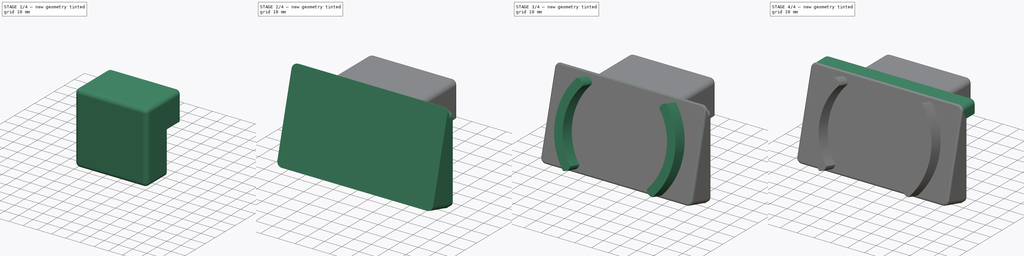
[diagram: build sequence overview — one tinted view per stage of 4, left to right]
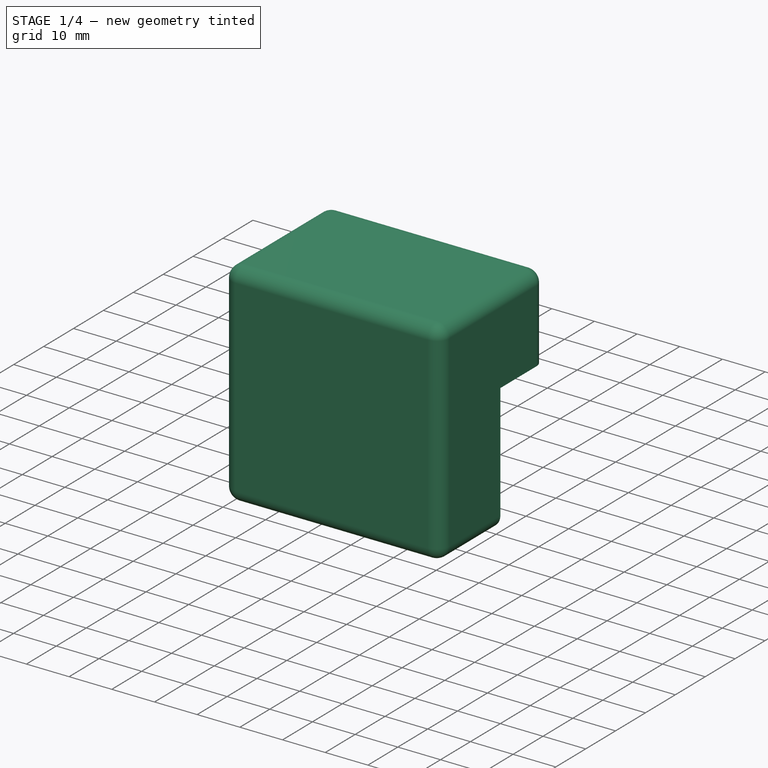
[diagram: stage 1 of 4 — iso view after this stage's code; geometry added in this stage tinted green]
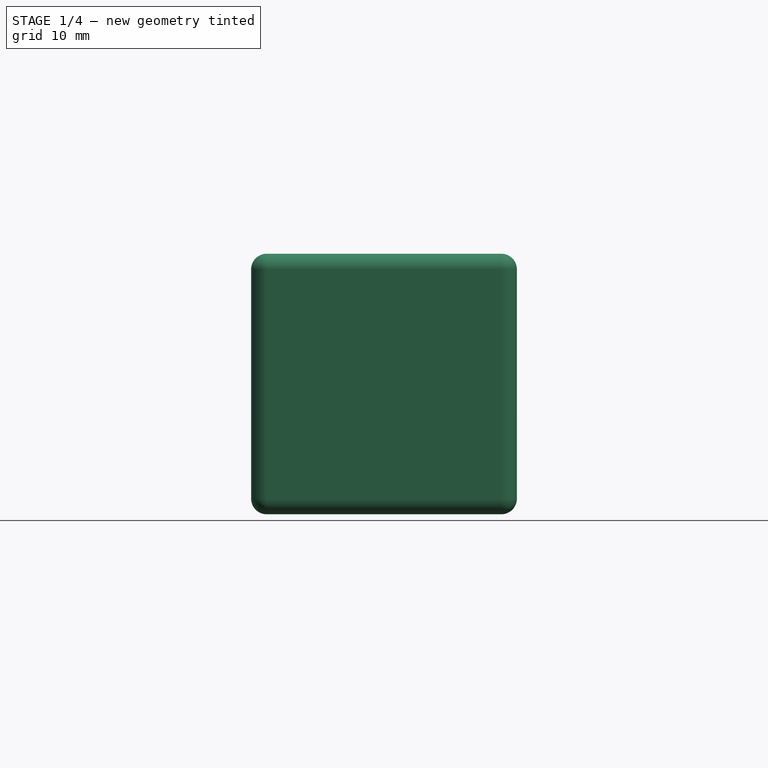
[diagram: stage 1 of 4 — front view after this stage's code; geometry added in this stage tinted green]
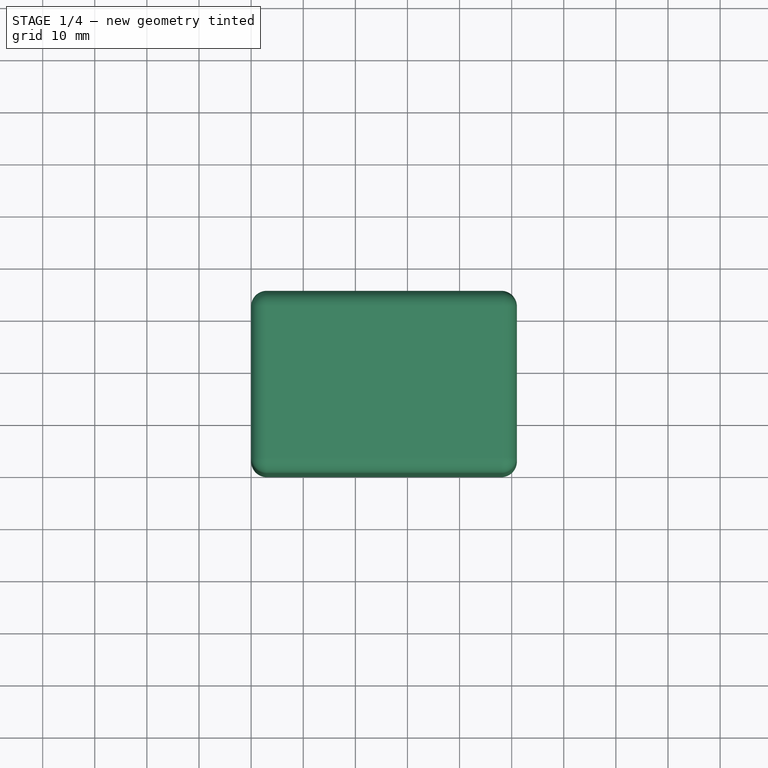
[diagram: stage 1 of 4 — top view after this stage's code; geometry added in this stage tinted green]
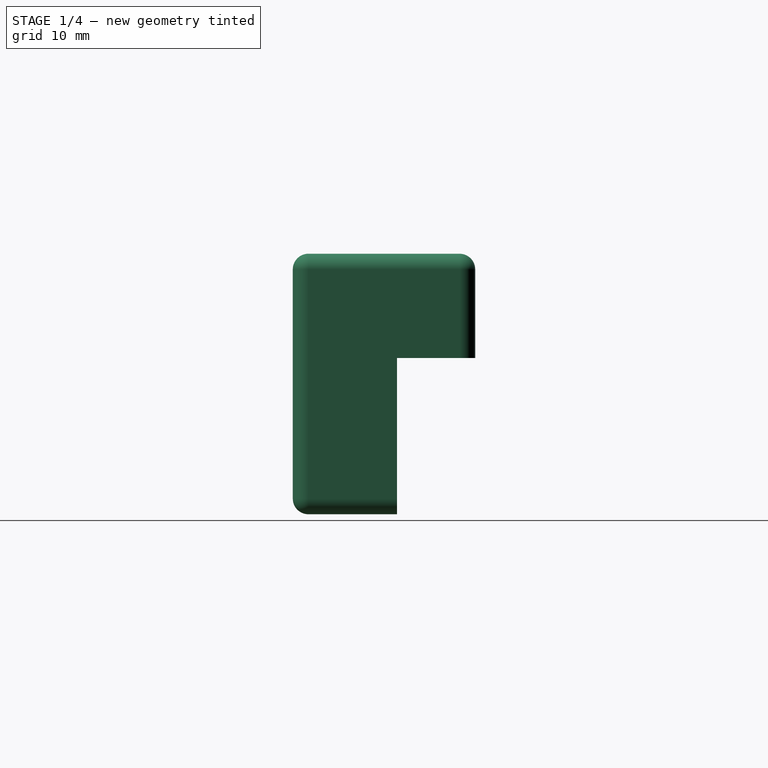
[diagram: stage 1 of 4 — right view after this stage's code; geometry added in this stage tinted green]
FCSTD DOCUMENT  (FreeCAD 1.0R39319 (Git))
Label: aukey-magsafe
License: All rights reserved
LicenseURL: https://en.wikipedia.org/wiki/All_rights_reserved
objects: Sketcher::SketchObject×7, PartDesign::Fillet×6, PartDesign::Pad×5, PartDesign::Plane×4, PartDesign::Pocket×2, PartDesign::Chamfer×1, PartDesign::Body×1
note: 61 computed .brp shape members not serialized (recipe doc carries the construction recipe); baked Part::Feature solids carry a one-line shape summary decoded from their .brp

FEATURE [Sketcher::SketchObject] Sketch
  ArcFitTolerance = 1e-06
  AttachmentSupport = -> [XY_Plane]
  FullyConstrained = true
  MakeInternals = false
  MapMode = 5
  sketch-geometry (4):
    g0: LineSegment StartX=0 StartY=0 StartZ=0 EndX=51 EndY=0 EndZ=0
    g1: LineSegment StartX=51 StartY=0 StartZ=0 EndX=51 EndY=35 EndZ=0
    g2: LineSegment StartX=51 StartY=35 StartZ=0 EndX=0 EndY=35 EndZ=0
    g3: LineSegment StartX=0 StartY=35 StartZ=0 EndX=0 EndY=0 EndZ=0
  constraints (11):
    c: Coincident(g0,g1)
    c: Coincident(g1,g2)
    c: Coincident(g2,g3)
    c: Coincident(g3,g0)
    c: Horizontal(g0)
    c: Horizontal(g2)
    c: Vertical(g1)
    c: Vertical(g3)
    c: Coincident(g0,g-1)
    c: DistanceX(g0,g0) = 51
    c: DistanceY(g0,g2) = 35
FEATURE [PartDesign::Pad] Pad
  Direction = (0,0,1)
  Length = 50
  Length2 = 10
  Profile = -> Sketch
  ReferenceAxis = -> Sketch [N_Axis]
  Refine = true
  Suppressed = false
  Type = 0
FEATURE [Sketcher::SketchObject] Sketch001
  ArcFitTolerance = 1e-06
  AttachmentSupport = -> [XY_Plane]
  FullyConstrained = false
  MakeInternals = false
  MapMode = 5
  sketch-geometry (13):
    g0: LineSegment StartX=20.3225 StartY=4.9 StartZ=0 EndX=4.9 EndY=4.9 EndZ=0
    g1: LineSegment StartX=4.9 StartY=4.9 StartZ=0 EndX=4.9 EndY=10.8 EndZ=0
    g2: LineSegment StartX=4.9 StartY=10.8 StartZ=0 EndX=9.9 EndY=10.8 EndZ=0
    g3: LineSegment StartX=9.9 StartY=10.8 StartZ=0 EndX=9.9 EndY=15.7 EndZ=0
    g4: LineSegment StartX=9.9 StartY=15.7 StartZ=0 EndX=4.9 EndY=15.7 EndZ=0
    g5: LineSegment StartX=4.9 StartY=15.7 StartZ=0 EndX=4.9 EndY=35.7 EndZ=0
    g6: LineSegment StartX=4.9 StartY=35.7 StartZ=0 EndX=45.9 EndY=35.7 EndZ=0
    g7: LineSegment StartX=45.9 StartY=35.7 StartZ=0 EndX=45.9 EndY=15.7 EndZ=0
    g8: LineSegment StartX=45.9 StartY=15.7 StartZ=0 EndX=40.9 EndY=15.7 EndZ=0
    g9: LineSegment StartX=40.9 StartY=15.7 StartZ=0 EndX=40.9 EndY=10.7 EndZ=0
    g10: LineSegment StartX=40.9 StartY=10.7 StartZ=0 EndX=45.9 EndY=10.7 EndZ=0
    g11: LineSegment StartX=45.9 StartY=10.7 StartZ=0 EndX=45.9 EndY=4.9 EndZ=0
    g12: LineSegment StartX=45.9 StartY=4.9 StartZ=0 EndX=20.3225 EndY=4.9 EndZ=0
  constraints (38):
    c: Horizontal(g0)
    c: Coincident(g0,g1)
    c: Vertical(g1)
    c: Coincident(g1,g2)
    c: Horizontal(g2)
    c: Coincident(g2,g3)
    c: Vertical(g3)
    c: Coincident(g3,g4)
    c: Horizontal(g4)
    c: Coincident(g4,g5)
    c: Vertical(g5)
    c: Coincident(g5,g6)
    c: Horizontal(g6)
    c: Coincident(g6,g7)
    c: Vertical(g7)
    c: Coincident(g7,g8)
    c: Horizontal(g8)
    c: Coincident(g8,g9)
    c: Vertical(g9)
    c: Coincident(g9,g10)
    c: Horizontal(g10)
    c: Coincident(g10,g11)
    c: Vertical(g11)
    c: Coincident(g11,g12)
    c: Coincident(g12,g0)
    c: Horizontal(g12)
    c: DistanceX(g-1,g0) = 4.9
    c: DistanceX(g1,g2) = 5
    c: DistanceX(g9,g10) = 5
    c: DistanceX(g8,g7) = 5
    c: DistanceX(g4,g3) = 5
    c: DistanceX(g0,g11) = 41
    c: DistanceY(g-1,g11) = 4.9
    c: DistanceY(g11,g10) = 5.8
    c: DistanceY(g9,g8) = 5
    c: DistanceY(g7,g6) = 20
    c: DistanceY(g0,g1) = 5.9
    c: DistanceY(g2,g3) = 4.9
FEATURE [PartDesign::Pocket] Pocket
  BaseFeature = -> Pad
  Direction = (0,0,-1)
  Length = 40
  Length2 = 5
  Profile = -> Sketch001
  ReferenceAxis = -> Sketch001 [N_Axis]
  Refine = true
  Reversed = true
  Suppressed = false
  Type = 0
FEATURE [Sketcher::SketchObject] Sketch002
  ArcFitTolerance = 1e-06
  AttachmentSupport = -> [XY_Plane]
  FullyConstrained = true
  MakeInternals = false
  MapMode = 5
  sketch-geometry (4):
    g0: LineSegment StartX=0 StartY=40 StartZ=0 EndX=0 EndY=20 EndZ=0
    g1: LineSegment StartX=0 StartY=20 StartZ=0 EndX=51 EndY=20 EndZ=0
    g2: LineSegment StartX=51 StartY=20 StartZ=0 EndX=51 EndY=40 EndZ=0
    g3: LineSegment StartX=51 StartY=40 StartZ=0 EndX=0 EndY=40 EndZ=0
  constraints (12):
    c: Coincident(g0,g1)
    c: Coincident(g1,g2)
    c: Coincident(g2,g3)
    c: Coincident(g3,g0)
    c: Vertical(g0)
    c: Vertical(g2)
    c: Horizontal(g1)
    c: Horizontal(g3)
    c: Distance(g0,g2) = 51
    c: Distance(g1,g3) = 20
    c: PointOnObject(g0,g-2)
    c: DistanceY(g-1,g0) = 20
FEATURE [PartDesign::Pocket] Pocket001
  BaseFeature = -> Pocket
  Direction = (0,0,-1)
  Length = 30
  Length2 = 5
  Profile = -> Sketch002
  ReferenceAxis = -> Sketch002 [N_Axis]
  Refine = true
  Reversed = true
  Suppressed = false
  Type = 0
FEATURE [PartDesign::Fillet] Fillet
  Base = -> Pocket001 [Edge14,Edge13,Edge28,Edge9,Edge8,Edge10,Edge7,Edge1,Edge2,Edge4,Edge3]
  BaseFeature = -> Pocket001
  Radius = 3
  Refine = true
  SupportTransform = false
  Suppressed = false
  UseAllEdges = false
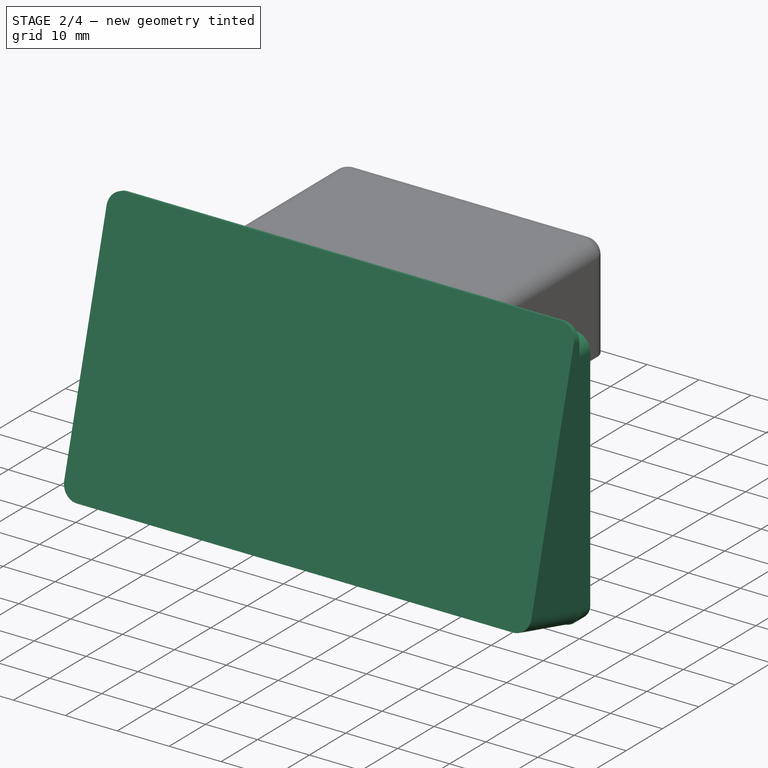
[diagram: stage 2 of 4 — iso view after this stage's code; geometry added in this stage tinted green]
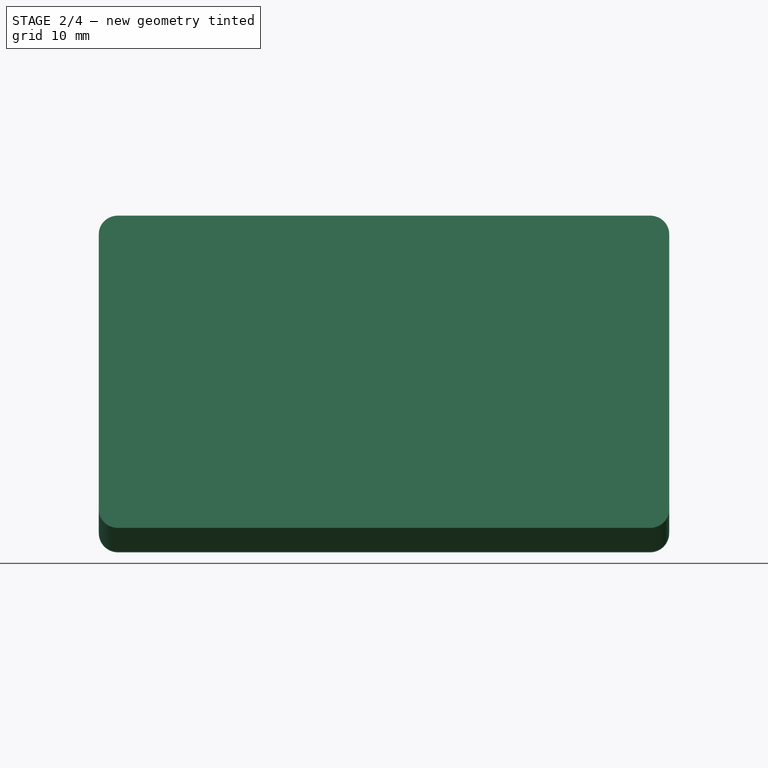
[diagram: stage 2 of 4 — front view after this stage's code; geometry added in this stage tinted green]
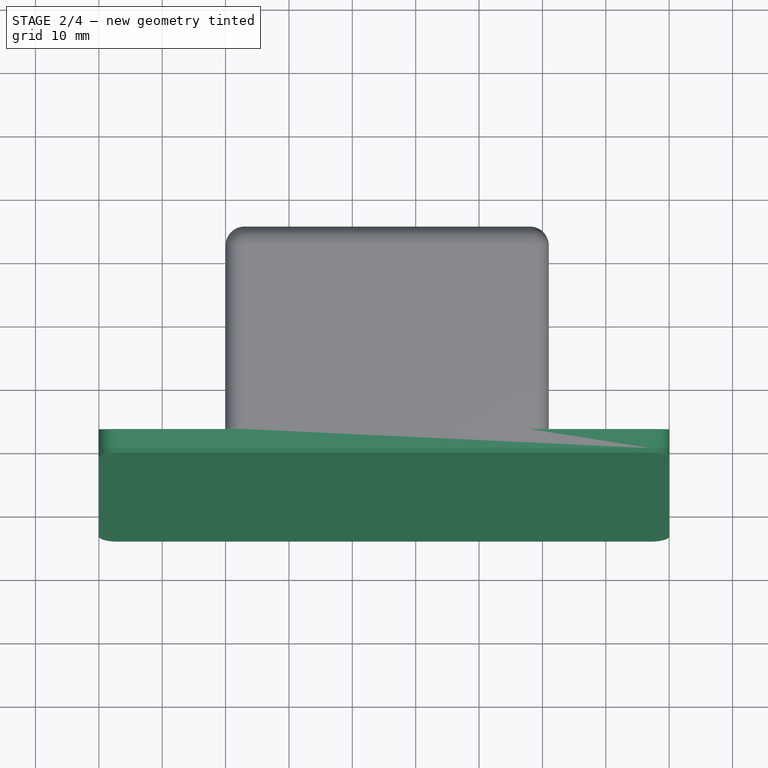
[diagram: stage 2 of 4 — top view after this stage's code; geometry added in this stage tinted green]
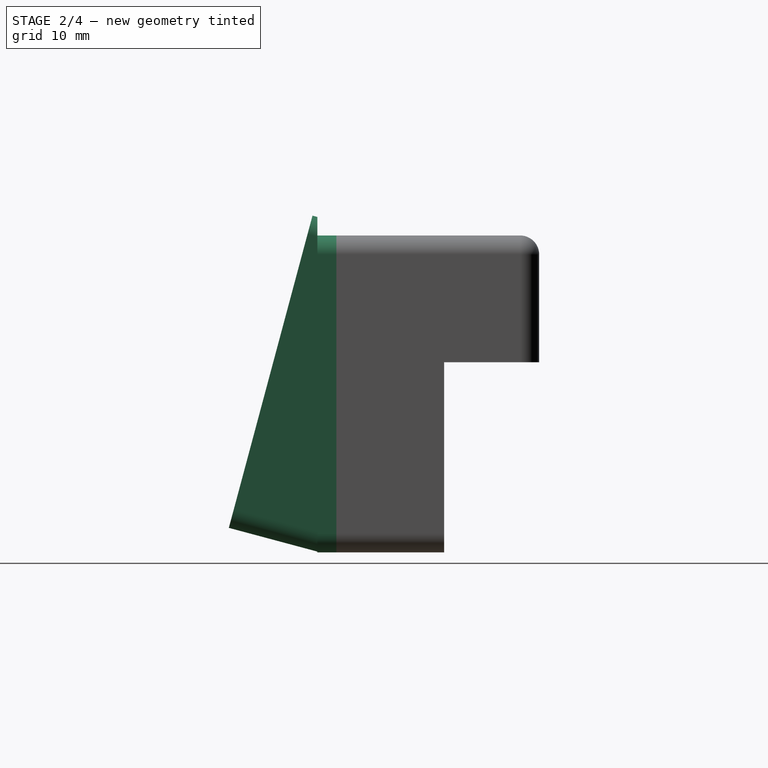
[diagram: stage 2 of 4 — right view after this stage's code; geometry added in this stage tinted green]
FEATURE [PartDesign::Chamfer] Chamfer
  Angle = 45
  Base = -> Fillet [Edge33,Edge31,Edge29,Edge35,Edge28,Edge37,Edge39,Edge40,Edge38,Edge36,Edge34]
  BaseFeature = -> Fillet
  ChamferType = 0
  FlipDirection = false
  Refine = true
  Size = 1
  Size2 = 1
  SupportTransform = false
  Suppressed = false
  UseAllEdges = false
FEATURE [PartDesign::Plane] DatumPlane
  AttachmentOffset = pos=(0,0,-3) rot=(0,0,1;0rad)
  AttachmentSupport = -> [Chamfer]
  Length = 112.208
  MapMode = 5
  Placement = pos=(0,3,-7e-16) rot=(1,0,0;1.5708rad)
  ResizeMode = 0
  Width = 95.1285
FEATURE [Sketcher::SketchObject] Sketch003
  ArcFitTolerance = 1e-06
  AttachmentSupport = -> [DatumPlane]
  FullyConstrained = true
  MakeInternals = false
  MapMode = 5
  Placement = pos=(0,3,-7e-16) rot=(1,0,0;1.5708rad)
  sketch-geometry (12):
    g0: LineSegment StartX=-20 StartY=47 StartZ=0 EndX=-20 EndY=3 EndZ=0
    g1: LineSegment StartX=-17 StartY=0 StartZ=0 EndX=67 EndY=0 EndZ=0
    g2: LineSegment StartX=70 StartY=3 StartZ=0 EndX=70 EndY=47 EndZ=0
    g3: LineSegment StartX=67 StartY=50 StartZ=0 EndX=-17 EndY=50 EndZ=0
    g4: ArcOfCircle CenterX=-17 CenterY=47 CenterZ=0 NormalX=0 NormalY=0 NormalZ=1 AngleXU=0 Radius=3 StartAngle=1.5708 EndAngle=3.14159
    g5: GeomPoint [constr] X=-20 Y=50 Z=0
    g6: ArcOfCircle CenterX=-17 CenterY=3 CenterZ=0 NormalX=0 NormalY=0 NormalZ=1 AngleXU=0 Radius=3 StartAngle=3.14159 EndAngle=4.71239
    g7: GeomPoint [constr] X=-20 Y=0 Z=0
    g8: ArcOfCircle CenterX=67 CenterY=3 CenterZ=0 NormalX=0 NormalY=0 NormalZ=1 AngleXU=0 Radius=3 StartAngle=4.71239 EndAngle=6.28319
    g9: GeomPoint [constr] X=70 Y=0 Z=0
    g10: ArcOfCircle CenterX=67 CenterY=47 CenterZ=0 NormalX=0 NormalY=0 NormalZ=1 AngleXU=0 Radius=3 StartAngle=-9e-16 EndAngle=1.5708
    g11: GeomPoint [constr] X=70 Y=50 Z=0
  constraints (28):
    c: Vertical(g0)
    c: Vertical(g2)
    c: Horizontal(g1)
    c: Horizontal(g3)
    c: PointOnObject(g9,g-1)
    c: DistanceY(g-1,g5) = 50
    c: DistanceX(g7,g-1) = 20
    c: DistanceX(g-1,g9) = 70
    c: PointOnObject(g5,g0)
    c: PointOnObject(g5,g3)
    c: Tangent(g0,g4) = -1.5708
    c: Tangent(g3,g4) = -1.5708
    c: PointOnObject(g7,g0)
    c: PointOnObject(g7,g1)
    c: Tangent(g0,g6) = -1.5708
    c: Tangent(g1,g6) = -1.5708
    c: PointOnObject(g9,g1)
    c: PointOnObject(g9,g2)
    c: Tangent(g1,g8) = -1.5708
    c: Tangent(g2,g8) = -1.5708
    c: PointOnObject(g11,g2)
    c: PointOnObject(g11,g3)
    c: Tangent(g2,g10) = -1.5708
    c: Tangent(g3,g10) = -1.5708
    c: Equal(g10,g4)
    c: Equal(g4,g6)
    c: Equal(g6,g8)
    c: Radius(g4) = 3
FEATURE [PartDesign::Pad] Pad001
  BaseFeature = -> Chamfer
  Direction = (0,-1,2e-16)
  Length = 3
  Length2 = 10
  Profile = -> Sketch003
  ReferenceAxis = -> Sketch003 [N_Axis]
  Refine = true
  Suppressed = false
  Type = 0
FEATURE [PartDesign::Plane] DatumPlane001
  AttachmentOffset = pos=(0,0,15) rot=(-1,0,0;0.261799rad)
  AttachmentSupport = -> [Pad001]
  Length = 113.575
  MapMode = 5
  Placement = pos=(0,-15,3.3e-15) rot=(1,0,0;1.309rad)
  ResizeMode = 0
  Width = 109.37
FEATURE [Sketcher::SketchObject] Sketch004
  ArcFitTolerance = 1e-06
  AttachmentSupport = -> [DatumPlane001]
  FullyConstrained = true
  MakeInternals = false
  MapMode = 5
  Placement = pos=(0,-15,3.1e-15) rot=(1,0,0;1.309rad)
  sketch-geometry (12):
    g0: LineSegment StartX=-20 StartY=52 StartZ=0 EndX=-20 EndY=7 EndZ=0
    g1: LineSegment StartX=-17 StartY=4 StartZ=0 EndX=67 EndY=4 EndZ=0
    g2: LineSegment StartX=70 StartY=7 StartZ=0 EndX=70 EndY=52 EndZ=0
    g3: LineSegment StartX=67 StartY=55 StartZ=0 EndX=-17 EndY=55 EndZ=0
    g4: ArcOfCircle CenterX=-17 CenterY=7 CenterZ=0 NormalX=0 NormalY=0 NormalZ=1 AngleXU=0 Radius=3 StartAngle=3.14159 EndAngle=4.71239
    g5: GeomPoint [constr] X=-20 Y=4 Z=0
    g6: ArcOfCircle CenterX=-17 CenterY=52 CenterZ=0 NormalX=0 NormalY=0 NormalZ=1 AngleXU=0 Radius=3 StartAngle=1.5708 EndAngle=3.14159
    g7: GeomPoint [constr] X=-20 Y=55 Z=0
    g8: ArcOfCircle CenterX=67 CenterY=52 CenterZ=0 NormalX=0 NormalY=0 NormalZ=1 AngleXU=0 Radius=3 StartAngle=3e-16 EndAngle=1.5708
    g9: GeomPoint [constr] X=70 Y=55 Z=0
    g10: ArcOfCircle CenterX=67 CenterY=7 CenterZ=0 NormalX=0 NormalY=0 NormalZ=1 AngleXU=0 Radius=3 StartAngle=4.71239 EndAngle=6.28319
    g11: GeomPoint [constr] X=70 Y=4 Z=0
  constraints (28):
    c: Vertical(g0)
    c: Vertical(g2)
    c: Horizontal(g1)
    c: Horizontal(g3)
    c: DistanceX(g5,g-1) = 20
    c: DistanceX(g-1,g11) = 70
    c: DistanceY(g-1,g7) = 55
    c: DistanceY(g-1,g11) = 4
    c: PointOnObject(g5,g0)
    c: PointOnObject(g5,g1)
    c: Tangent(g0,g4) = -1.5708
    c: Tangent(g1,g4) = -1.5708
    c: PointOnObject(g7,g0)
    c: PointOnObject(g7,g3)
    c: Tangent(g0,g6) = -1.5708
    c: Tangent(g3,g6) = -1.5708
    c: PointOnObject(g9,g2)
    c: PointOnObject(g9,g3)
    c: Tangent(g2,g8) = -1.5708
    c: Tangent(g3,g8) = -1.5708
    c: PointOnObject(g11,g1)
    c: PointOnObject(g11,g2)
    c: Tangent(g1,g10) = -1.5708
    c: Tangent(g2,g10) = -1.5708
    c: Equal(g10,g8)
    c: Equal(g8,g6)
    c: Equal(g6,g4)
    c: DistanceX(g7,g6) = 3
FEATURE [PartDesign::Pad] Pad002
  BaseFeature = -> Pad001
  Direction = (0,-0.965926,0.258819)
  Length = 10
  Length2 = 10
  Profile = -> Sketch004
  ReferenceAxis = -> Sketch004 [N_Axis]
  Refine = true
  Reversed = true
  Suppressed = false
  Type = 2
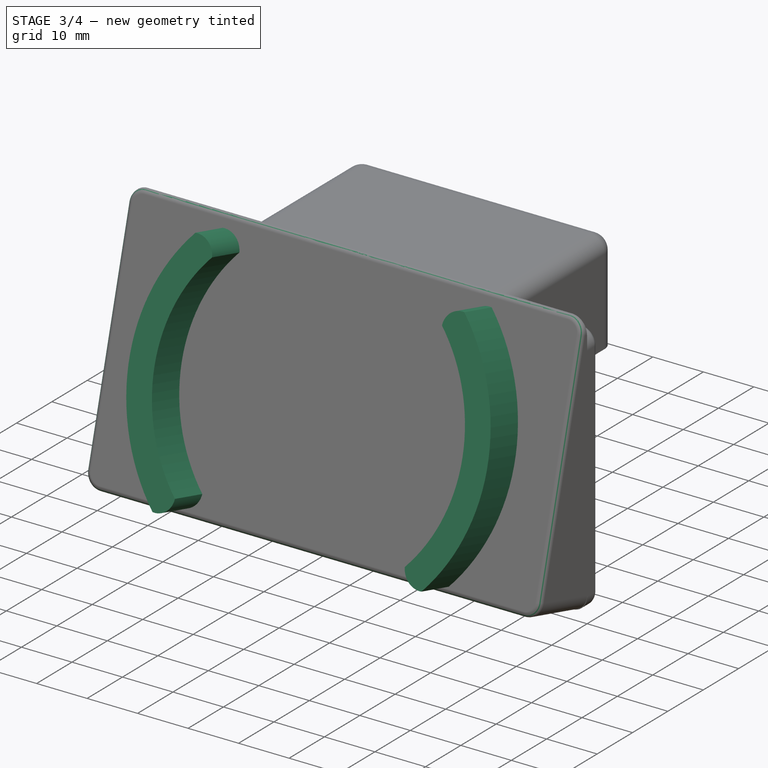
[diagram: stage 3 of 4 — iso view after this stage's code; geometry added in this stage tinted green]
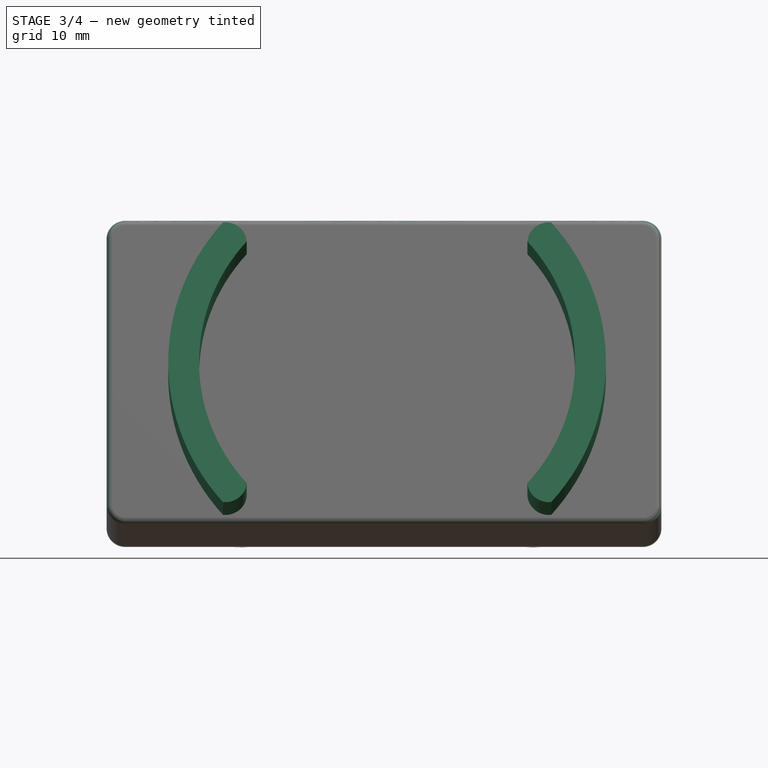
[diagram: stage 3 of 4 — front view after this stage's code; geometry added in this stage tinted green]
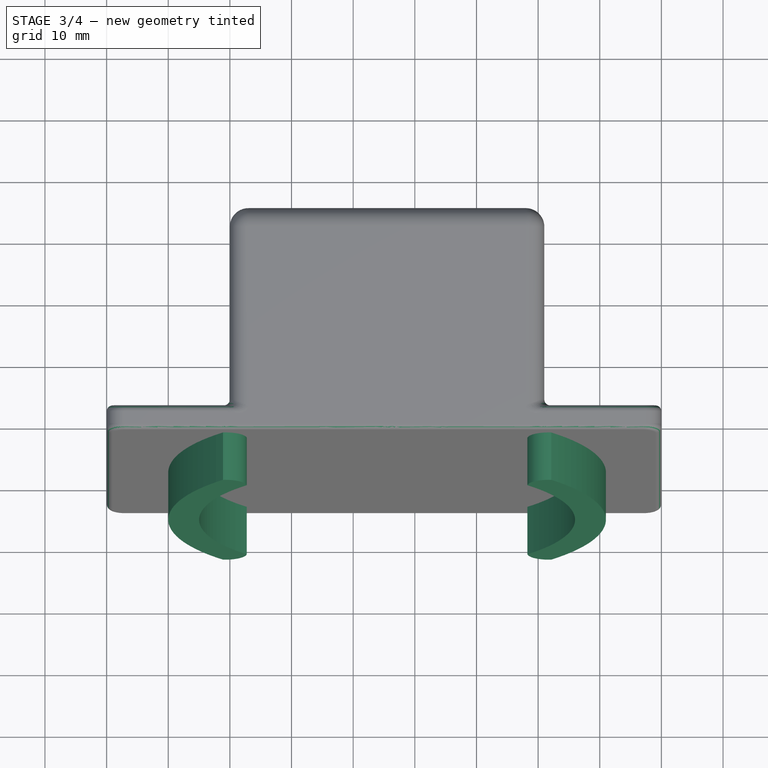
[diagram: stage 3 of 4 — top view after this stage's code; geometry added in this stage tinted green]
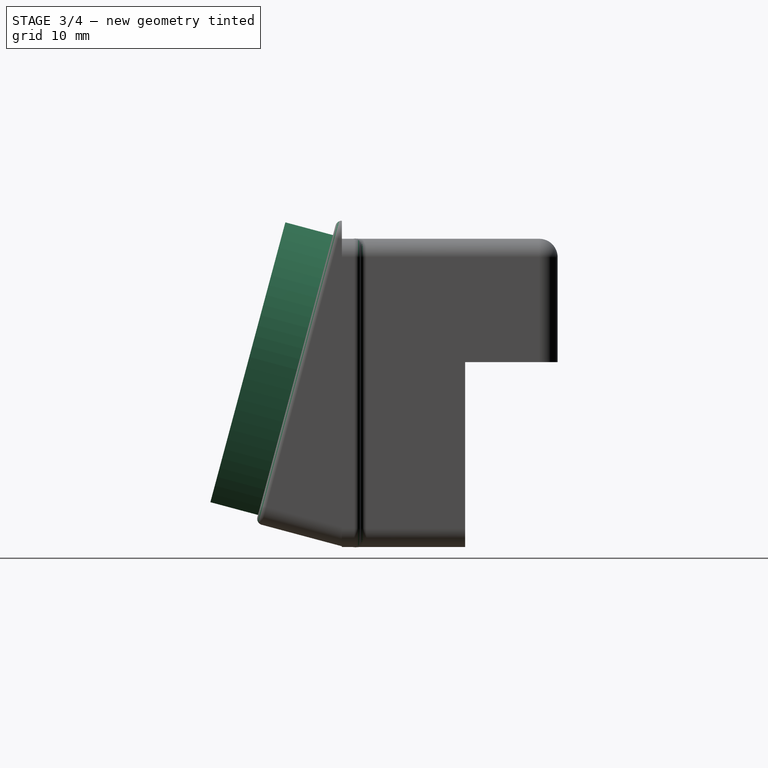
[diagram: stage 3 of 4 — right view after this stage's code; geometry added in this stage tinted green]
FEATURE [PartDesign::Fillet] Fillet001
  Base = -> Pad002 [Face27,Face3]
  BaseFeature = -> Pad002
  Radius = 1
  Refine = true
  SupportTransform = false
  Suppressed = false
  UseAllEdges = false
FEATURE [PartDesign::Plane] DatumPlane002
  AttachmentSupport = -> [Fillet001]
  Length = 113.575
  MapMode = 5
  Placement = pos=(0,-13.9952,3.75) rot=(1,0,0;1.309rad)
  ResizeMode = 0
  Width = 109.37
FEATURE [Sketcher::SketchObject] Sketch005
  ArcFitTolerance = 1e-06
  AttachmentSupport = -> [DatumPlane002]
  FullyConstrained = false
  MakeInternals = false
  MapMode = 5
  Placement = pos=(0,-13.9952,3.75) rot=(1,0,0;1.309rad)
  sketch-geometry (9):
    g0: ArcOfCircle CenterX=25.5 CenterY=25 CenterZ=0 NormalX=0 NormalY=0 NormalZ=1 AngleXU=0 Radius=30.5 StartAngle=2.41327 EndAngle=3.86992
    g1: ArcOfCircle CenterX=25.5 CenterY=25 CenterZ=0 NormalX=0 NormalY=0 NormalZ=1 AngleXU=0 Radius=35.5 StartAngle=2.41891 EndAngle=3.86427
    g2: Circle [constr] CenterX=25.5 CenterY=25 CenterZ=0 NormalX=0 NormalY=0 NormalZ=1 AngleXU=0 Radius=33
    g3: ArcOfCircle CenterX=-0.748809 CenterY=5 CenterZ=0 NormalX=0 NormalY=0 NormalZ=1 AngleXU=0 Radius=3.5 StartAngle=4.60433 EndAngle=6.19694
    g4: ArcOfCircle CenterX=25.5 CenterY=25 CenterZ=0 NormalX=0 NormalY=0 NormalZ=1 AngleXU=0 Radius=30.5 StartAngle=5.55486 EndAngle=7.01151
    g5: ArcOfCircle CenterX=25.5 CenterY=25 CenterZ=0 NormalX=0 NormalY=0 NormalZ=1 AngleXU=0 Radius=35.5 StartAngle=5.56051 EndAngle=7.00586
    g6: ArcOfCircle CenterX=51.7488 CenterY=5 CenterZ=0 NormalX=0 NormalY=0 NormalZ=1 AngleXU=0 Radius=3.5 StartAngle=3.22783 EndAngle=4.82045
    g7: ArcOfCircle CenterX=-0.748809 CenterY=45 CenterZ=0 NormalX=0 NormalY=0 NormalZ=1 AngleXU=0 Radius=3.5 StartAngle=0.0862411 EndAngle=1.67886
    g8: ArcOfCircle CenterX=51.7488 CenterY=45 CenterZ=0 NormalX=0 NormalY=0 NormalZ=1 AngleXU=0 Radius=3.5 StartAngle=1.46274 EndAngle=3.05535
  constraints (25):
    c: Diameter(g0) = 61
    c: DistanceX(g-1,g0) = 25.5
    c: DistanceY(g-1,g0) = 25
    c: Diameter(g1) = 71
    c: Coincident(g1,g0)
    c: Diameter(g2) = 66
    c: Coincident(g2,g0)
    c: PointOnObject(g3,g2)
    c: Diameter(g3) = 7
    c: DistanceY(g3,g0) = 20
    c: PointOnObject(g5,g8)
    c: PointOnObject(g0,g7)
    c: Equal(g0,g4)
    c: PointOnObject(g4,g6)
    c: Coincident(g0,g4)
    c: Equal(g1,g5)
    c: Coincident(g1,g5)
    c: Coincident(g6,g5)
    c: PointOnObject(g6,g4)
    c: Coincident(g3,g1)
    c: Coincident(g3,g0)
    c: Coincident(g7,g1)
    c: PointOnObject(g7,g0)
    c: Coincident(g8,g4)
    c: PointOnObject(g8,g5)
FEATURE [PartDesign::Pad] Pad003
  BaseFeature = -> Fillet001
  Direction = (0,-0.965926,0.258819)
  Length = 8
  Length2 = 10
  Profile = -> Sketch005
  ReferenceAxis = -> Sketch005 [N_Axis]
  Refine = true
  Suppressed = false
  Type = 0
FEATURE [PartDesign::Fillet] Fillet004
  Base = -> Pad003 [Edge146]
  BaseFeature = -> Pad003
  Radius = 1
  Refine = true
  SupportTransform = false
  Suppressed = false
  UseAllEdges = false
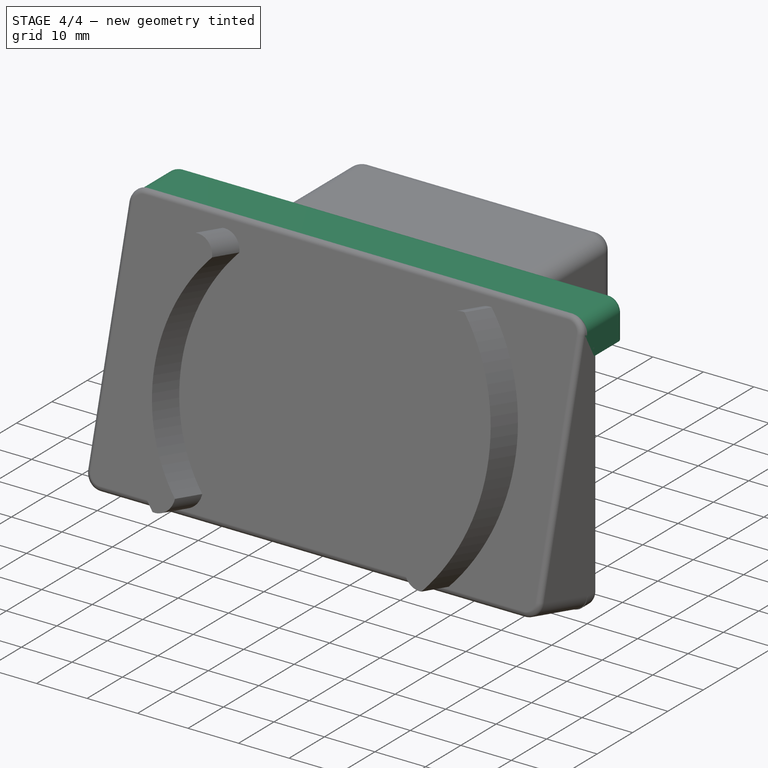
[diagram: stage 4 of 4 — iso view after this stage's code; geometry added in this stage tinted green]
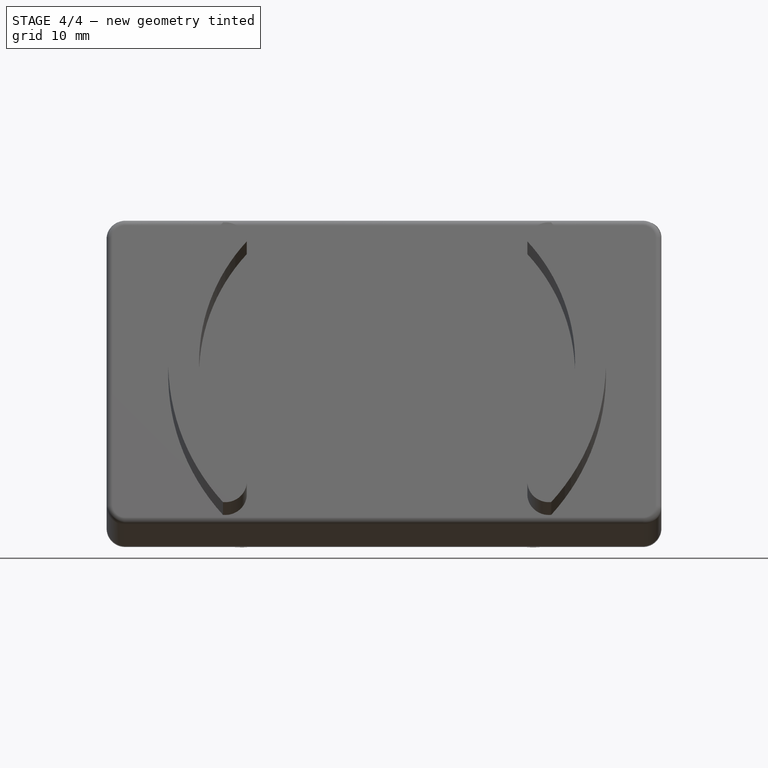
[diagram: stage 4 of 4 — front view after this stage's code; geometry added in this stage tinted green]
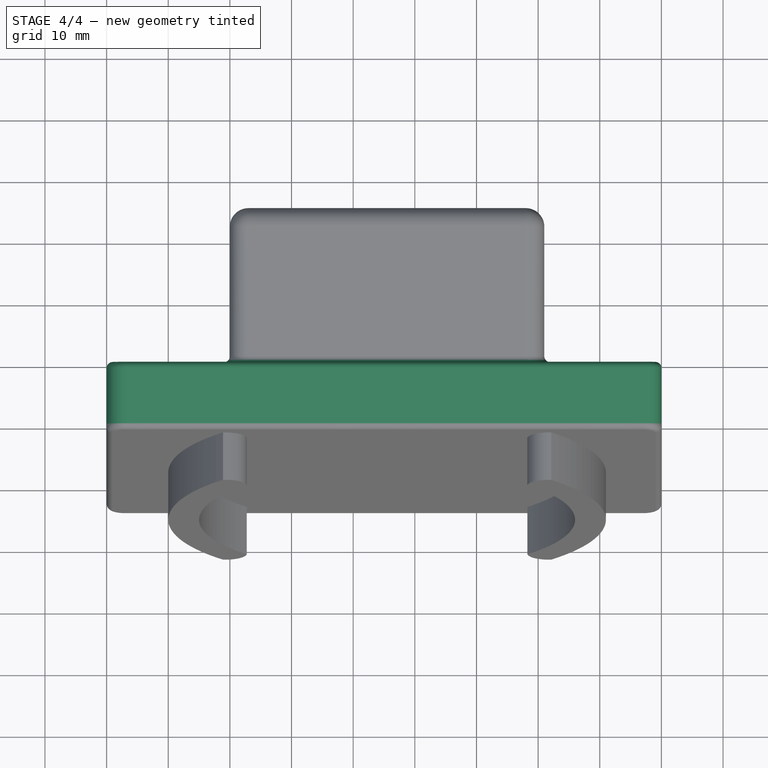
[diagram: stage 4 of 4 — top view after this stage's code; geometry added in this stage tinted green]
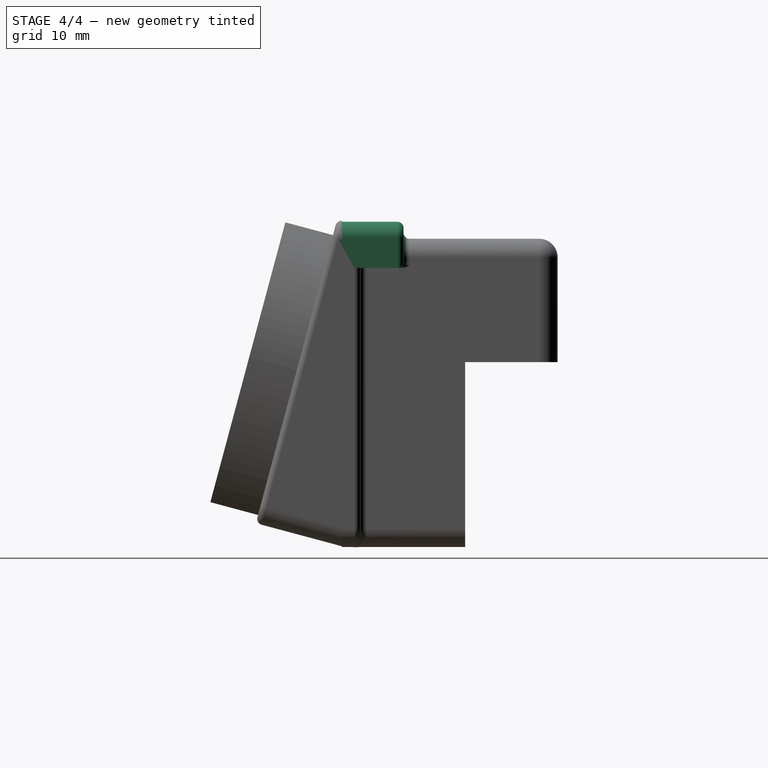
[diagram: stage 4 of 4 — right view after this stage's code; geometry added in this stage tinted green]
FEATURE [PartDesign::Fillet] Fillet002
  Base = -> Pad003 [Face88,Face87]
  BaseFeature = -> Pad003
  Radius = 1
  Refine = true
  SupportTransform = false
  Suppressed = false
  UseAllEdges = false
FEATURE [PartDesign::Fillet] Fillet003
  Base = -> Fillet002 [Edge14]
  BaseFeature = -> Fillet002
  Radius = 1
  Refine = true
  SupportTransform = false
  Suppressed = false
  UseAllEdges = false
FEATURE [PartDesign::Plane] DatumPlane003
  AttachmentSupport = -> [Fillet004]
  Length = 112.208
  MapMode = 5
  Placement = pos=(0,5.6e-15,0) rot=(0,0.707107,0.707107;3.14159rad)
  ResizeMode = 0
  Width = 95.1285
FEATURE [Sketcher::SketchObject] Sketch006
  ArcFitTolerance = 1e-06
  AttachmentSupport = -> [DatumPlane003]
  FullyConstrained = false
  MakeInternals = false
  MapMode = 5
  Placement = pos=(0,5.6e-15,0) rot=(0,0.707107,0.707107;3.14159rad)
  sketch-geometry (8):
    g0: LineSegment StartX=-70 StartY=45.2879 StartZ=0 EndX=20 EndY=45.2879 EndZ=0
    g1: LineSegment StartX=20 StartY=45.2879 StartZ=0 EndX=20 EndY=49.3879 EndZ=0
    g2: LineSegment StartX=16.6257 StartY=52.7622 StartZ=0 EndX=-67.4374 EndY=52.7622 EndZ=0
    g3: LineSegment StartX=-70 StartY=50.1996 StartZ=0 EndX=-70 EndY=45.2879 EndZ=0
    g4: ArcOfCircle CenterX=-67.4374 CenterY=50.1996 CenterZ=0 NormalX=0 NormalY=0 NormalZ=1 AngleXU=0 Radius=2.56258 StartAngle=1.5708 EndAngle=3.14159
    g5: GeomPoint [constr] X=-70 Y=52.7622 Z=0
    g6: ArcOfCircle CenterX=16.6257 CenterY=49.3879 CenterZ=0 NormalX=0 NormalY=0 NormalZ=1 AngleXU=0 Radius=3.37431 StartAngle=0 EndAngle=1.5708
    g7: GeomPoint [constr] X=20 Y=52.7622 Z=0
  constraints (16):
    c: Coincident(g0,g1)
    c: Coincident(g3,g0)
    c: Horizontal(g0)
    c: Horizontal(g2)
    c: Vertical(g1)
    c: Vertical(g3)
    c: DistanceX(g5,g-1) = 70
    c: DistanceX(g-1,g7) = 20
    c: PointOnObject(g5,g2)
    c: PointOnObject(g5,g3)
    c: Tangent(g2,g4) = -1.5708
    c: Tangent(g3,g4) = -1.5708
    c: PointOnObject(g7,g1)
    c: PointOnObject(g7,g2)
    c: Tangent(g1,g6) = -1.5708
    c: Tangent(g2,g6) = -1.5708
FEATURE [PartDesign::Pad] Pad004
  BaseFeature = -> Fillet004
  Direction = (0,1,-2e-16)
  Length = 10
  Length2 = 10
  Profile = -> Sketch006
  ReferenceAxis = -> Sketch006 [N_Axis]
  Refine = true
  Suppressed = false
  Type = 0
FEATURE [PartDesign::Fillet] Fillet005
  Base = -> Pad004 [Face13]
  BaseFeature = -> Pad004
  Radius = 1
  Refine = true
  SupportTransform = false
  Suppressed = false
  UseAllEdges = false
FEATURE [PartDesign::Body] Body
  AllowCompound = false
  Group = -> [Sketch,Pad,Sketch001,Pocket,Sketch002,Pocket001,Fillet,Chamfer,DatumPlane,Sketch003,Pad001,DatumPlane001,Sketch004,Pad002,Fillet001,DatumPlane002,Sketch005,Pad003,Fillet002,Fillet003,Fillet004,DatumPlane003,Sketch006,Pad004,Fillet005]
  Origin = -> Origin
  Tip = -> Fillet005
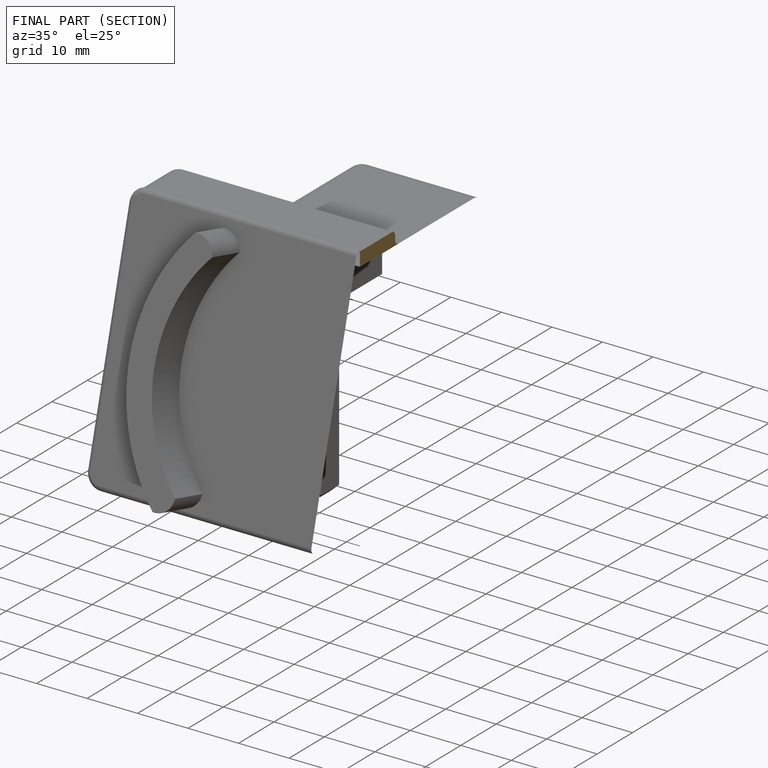
[diagram: finished part — half-section view (interior)]
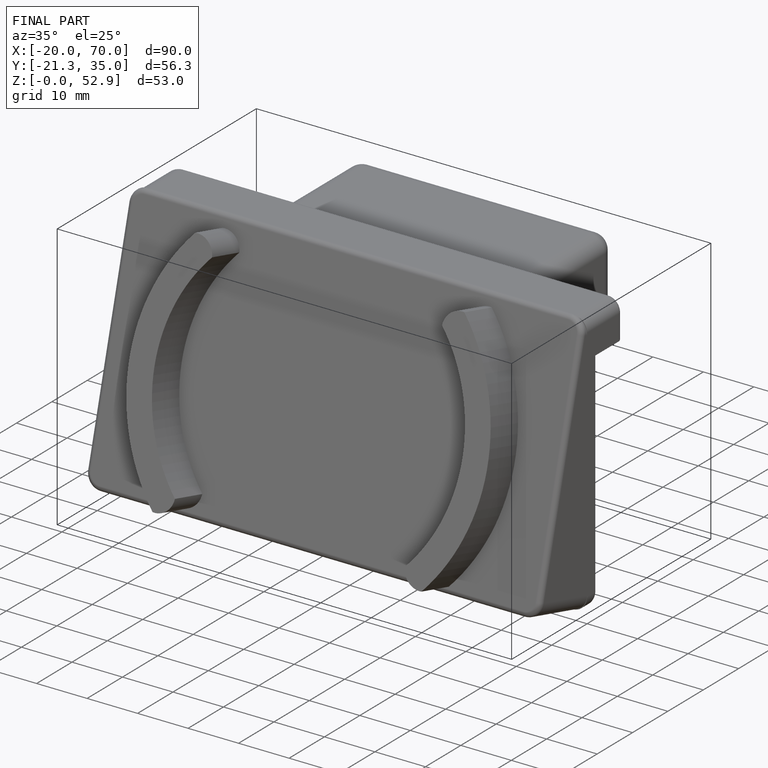
[diagram: finished part — iso view with bounding-box wireframe]
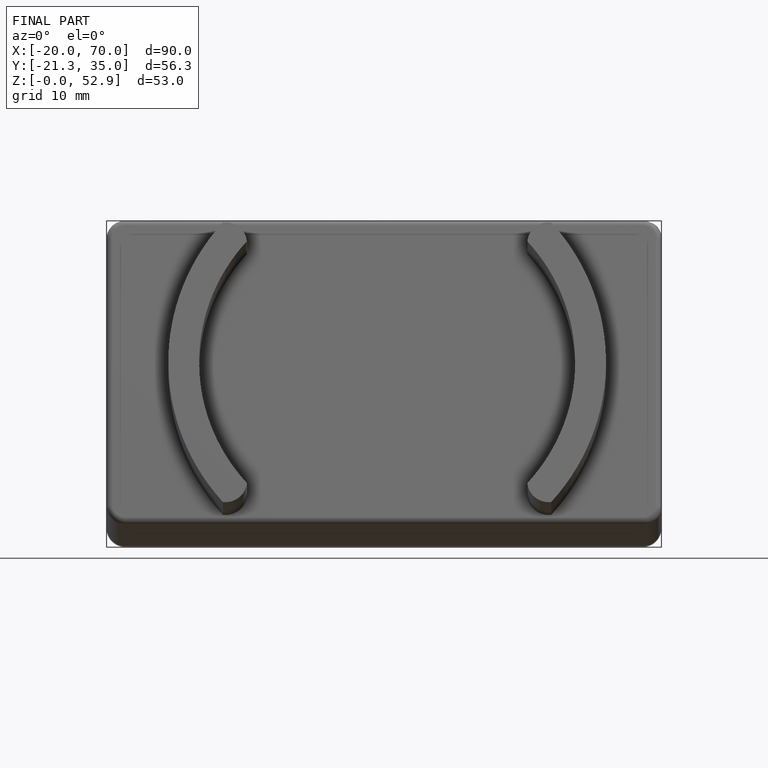
[diagram: finished part — front view with bounding-box wireframe]
